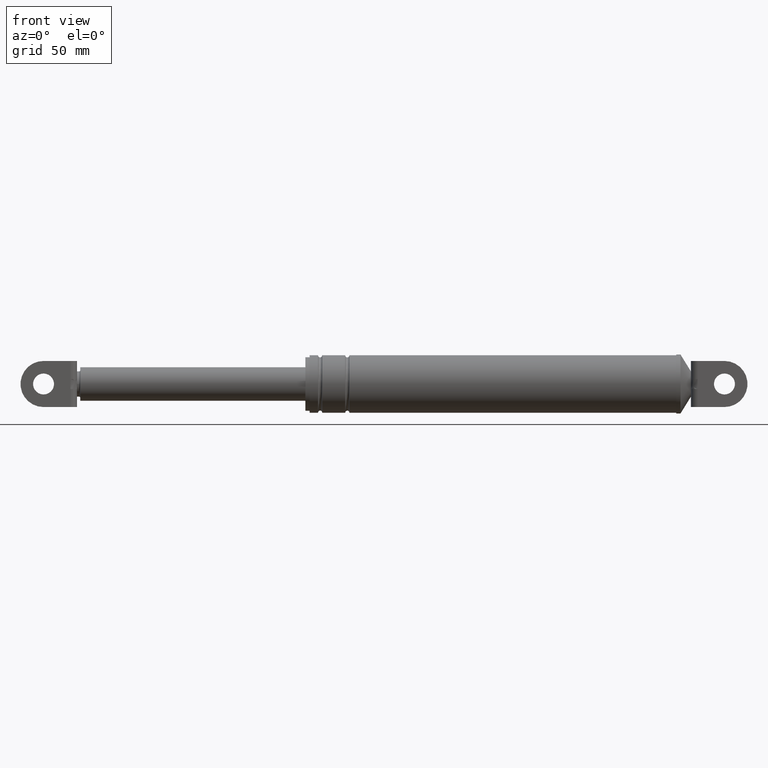
[diagram: clean part render]
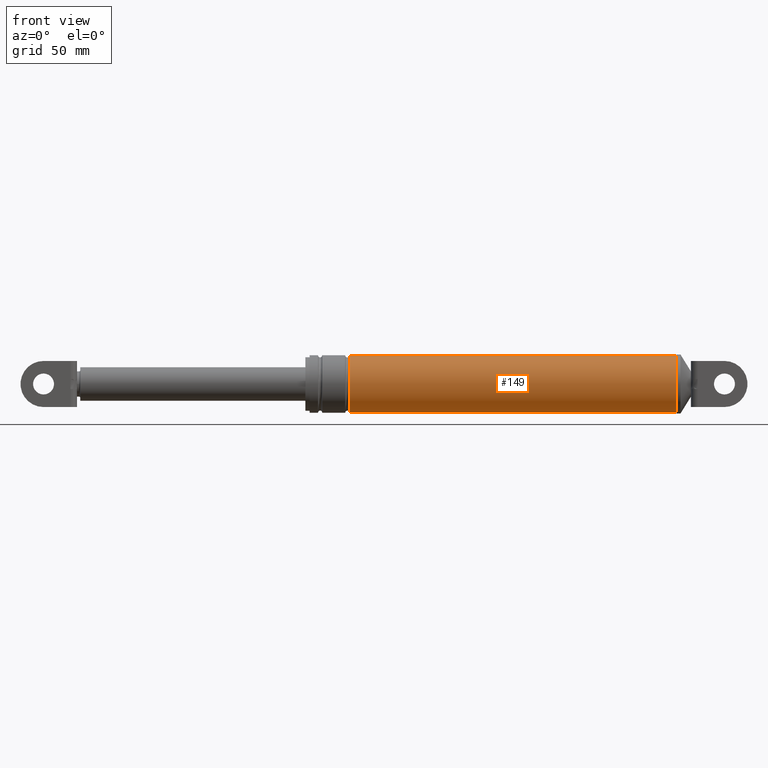
[diagram: same view with one face highlighted and labeled with its STEP entity id]
A machine part, front view. The second image highlights one B-rep face of the part: STEP entity #149.
In plain terms, the highlighted cylindrical surface (edge-blend (fillet) strip) has radius 13.7 mm, axis along (1, 0, 0).
Its self-contained STEP definition (entity closure, byte-faithful):
#149=ADVANCED_FACE('',(#558),#557,.T.);
#557=CYLINDRICAL_SURFACE('',#1264,1.37000000000E+001);
#558=FACE_OUTER_BOUND('',#1265,.T.);
#1261=CARTESIAN_POINT('',(0.00000000000E+000,0.00000000000E+000,1.94124635626E+002));
#1262=DIRECTION('',(1.00000000000E+000,-0.00000000000E+000,-0.00000000000E+000));
#1263=DIRECTION('',(0.00000000000E+000,0.00000000000E+000,-1.00000000000E+000));
#1264=AXIS2_PLACEMENT_3D('',#1261,#1262,#1263);
#1265=EDGE_LOOP('',(#1696,#1697,#1698,#1699));
#1696=ORIENTED_EDGE('',*,*,#1939,.F.);
#1697=ORIENTED_EDGE('',*,*,#1946,.T.);
#1698=ORIENTED_EDGE('',*,*,#1915,.T.);
#1699=ORIENTED_EDGE('',*,*,#1947,.F.);
#1915=EDGE_CURVE('',#2422,#2423,#2424,.T.);
#1939=EDGE_CURVE('',#2545,#2544,#2578,.T.);
#1946=EDGE_CURVE('',#2545,#2422,#2622,.T.);
#1947=EDGE_CURVE('',#2544,#2423,#2628,.T.);
#2422=VERTEX_POINT('',#3404);
#2423=VERTEX_POINT('',#3405);
#2424=CIRCLE('',#3409,1.37000000000E+001);
#2544=VERTEX_POINT('',#3476);
#2545=VERTEX_POINT('',#3477);
#2578=CIRCLE('',#3507,1.37000000000E+001);
#2622=(BOUNDED_CURVE() B_SPLINE_CURVE(1,(#3526,#3527),.UNSPECIFIED.,.F.,.F.) B_SPLINE_CURVE_WITH_KNOTS((2,2),(5.68181818350E-002,9.43181818016E-001),.UNSPECIFIED.) CURVE() GEOMETRIC_REPRESENTATION_ITEM() RATIONAL_B_SPLINE_CURVE((1.00000000000E+000,1.00000000000E+000)) REPRESENTATION_ITEM('') );
#2628=(BOUNDED_CURVE() B_SPLINE_CURVE(1,(#3528,#3529),.UNSPECIFIED.,.F.,.F.) B_SPLINE_CURVE_WITH_KNOTS((2,2),(5.68181818182E-002,9.43181818182E-001),.UNSPECIFIED.) CURVE() GEOMETRIC_REPRESENTATION_ITEM() RATIONAL_B_SPLINE_CURVE((7.50000000000E-001,7.50000000000E-001)) REPRESENTATION_ITEM('') );
#3404=CARTESIAN_POINT('',(3.53455556841E+002,0.00000000000E+000,1.80424635626E+002));
#3405=CARTESIAN_POINT('',(3.53455556841E+002,0.00000000000E+000,2.07824635626E+002));
#3406=CARTESIAN_POINT('',(3.53455556841E+002,0.00000000000E+000,1.94124635626E+002));
#3407=DIRECTION('',(-1.00000000000E+000,0.00000000000E+000,0.00000000000E+000));
#3408=DIRECTION('',(0.00000000000E+000,-1.22460635382E-016,1.00000000000E+000));
#3409=AXIS2_PLACEMENT_3D('',#3406,#3407,#3408);
#3476=CARTESIAN_POINT('',(1.97455556841E+002,0.00000000000E+000,2.07824635626E+002));
#3477=CARTESIAN_POINT('',(1.97455556841E+002,0.00000000000E+000,1.80424635626E+002));
#3504=CARTESIAN_POINT('',(1.97455556841E+002,0.00000000000E+000,1.94124635626E+002));
#3505=DIRECTION('',(-1.00000000000E+000,0.00000000000E+000,0.00000000000E+000));
#3506=DIRECTION('',(0.00000000000E+000,-1.22460635382E-016,1.00000000000E+000));
#3507=AXIS2_PLACEMENT_3D('',#3504,#3505,#3506);
#3526=CARTESIAN_POINT('',(1.97455556844E+002,0.00000000000E+000,1.80424635626E+002));
#3527=CARTESIAN_POINT('',(3.53455556811E+002,0.00000000000E+000,1.80424635626E+002));
#3528=CARTESIAN_POINT('',(1.97455556841E+002,-5.92118946467E-016,2.07824635626E+002));
#3529=CARTESIAN_POINT('',(3.53455556841E+002,-5.92118946467E-016,2.07824635626E+002));